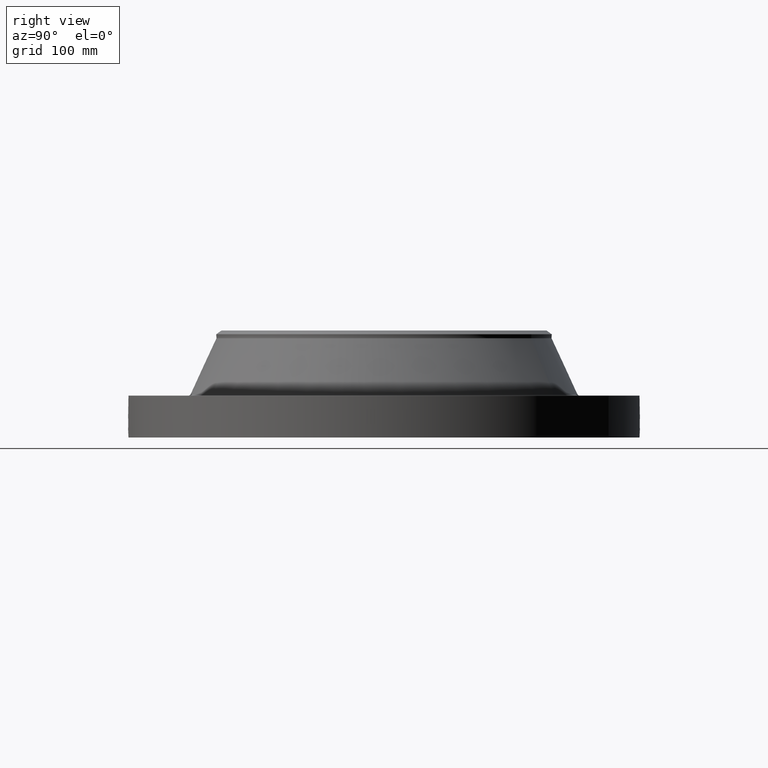
[diagram: clean part render]
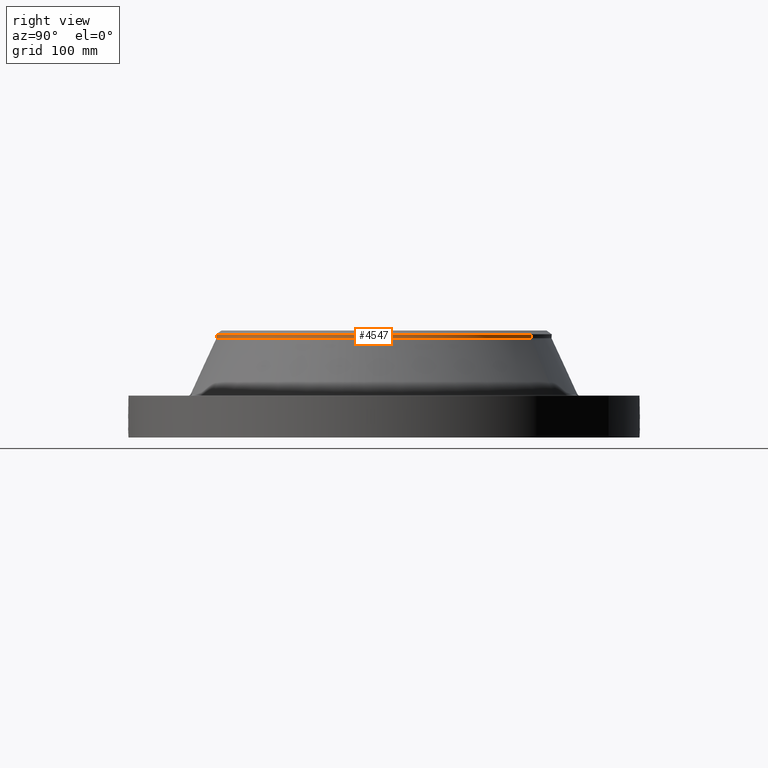
[diagram: same view with one face highlighted and labeled with its STEP entity id]
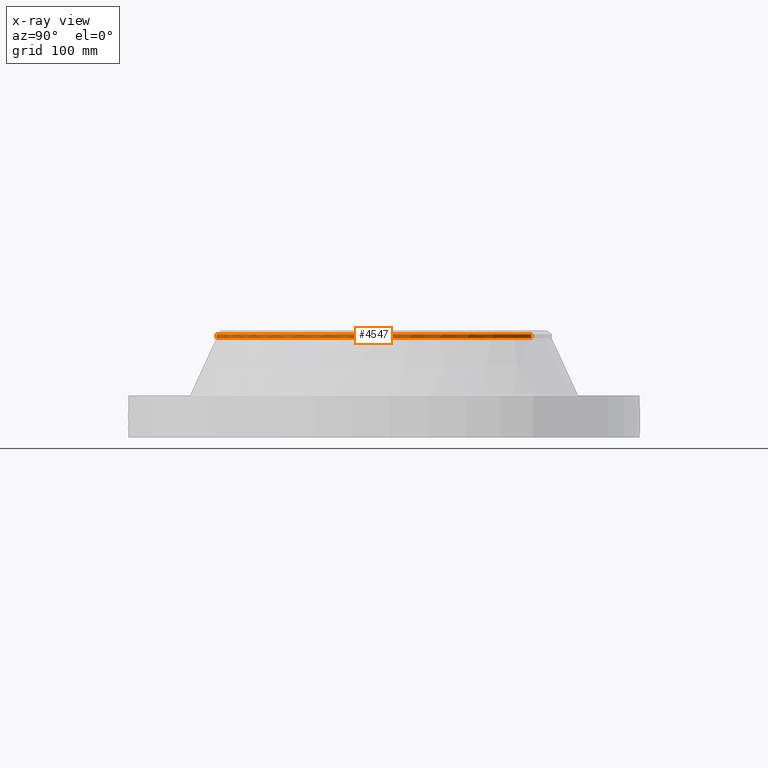
[diagram: x-ray of the same camera — body ghosted, the highlighted face saturated]
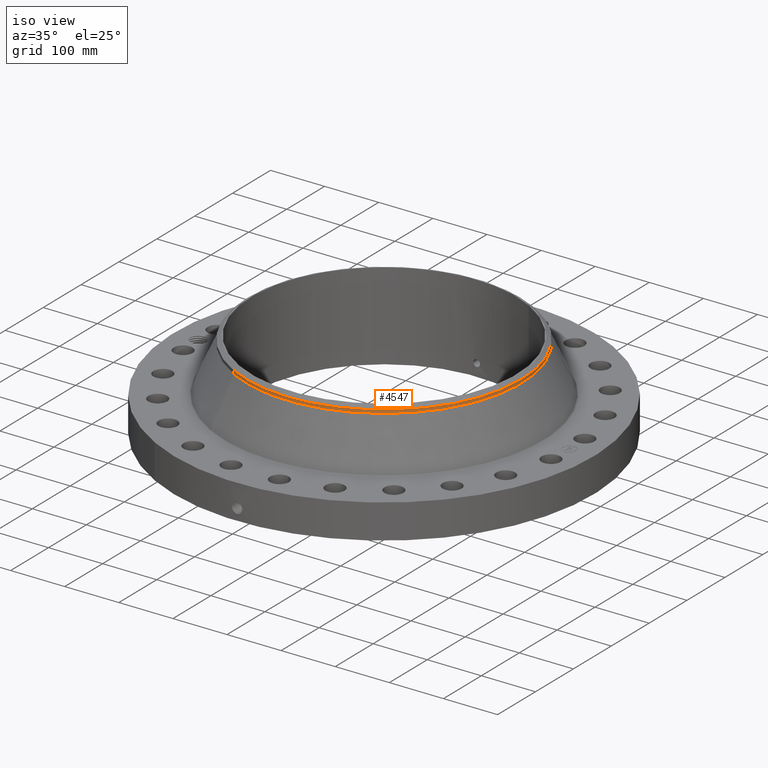
[diagram: same view with one face highlighted and labeled with its STEP entity id]
A machine part, right view. The second image highlights one B-rep face of the part: STEP entity #4547.
The next image is the same camera in x-ray: the body ghosted, the highlighted face saturated — about 0% of this face is hidden behind the body in this view.
A second angle (iso view) of the same face is appended — the face is thin or edge-on in the first view.
In plain terms, the highlighted cylindrical surface (partial cylindrical patch) has radius 254 mm, axis along (0, 0, -1).
Its self-contained STEP definition (entity closure, byte-faithful):
#3728=AXIS2_PLACEMENT_3D('Circle Axis2P3D',#3726,#3727,$) ;
#4183=AXIS2_PLACEMENT_3D('Circle Axis2P3D',#4181,#4182,$) ;
#4196=AXIS2_PLACEMENT_3D('Circle Axis2P3D',#4194,#4195,$) ;
#4528=AXIS2_PLACEMENT_3D('Cylinder Axis2P3D',#4525,#4526,#4527) ;
#3723=CARTESIAN_POINT('Vertex',(4.79425538606,8.77582561894,5.97645135496)) ;
#3726=CARTESIAN_POINT('Axis2P3D Location',(0.,0.,5.97645135496)) ;
#3730=CARTESIAN_POINT('Vertex',(-4.79425538606,-8.77582561894,5.97645135496)) ;
#4164=CARTESIAN_POINT('Vertex',(4.79425538606,-8.77582561894,6.2126718274)) ;
#4178=CARTESIAN_POINT('Vertex',(-4.79425538606,-8.77582561894,6.2126718274)) ;
#4181=CARTESIAN_POINT('Axis2P3D Location',(0.,0.,6.2126718274)) ;
#4194=CARTESIAN_POINT('Axis2P3D Location',(0.,0.,6.2126718274)) ;
#4198=CARTESIAN_POINT('Vertex',(4.79425538606,8.77582561894,6.2126718274)) ;
#4525=CARTESIAN_POINT('Axis2P3D Location',(0.,0.,3.25000000001)) ;
#4530=CARTESIAN_POINT('Line Origine',(-4.79425538606,-8.77582561894,6.09456159118)) ;
#4535=CARTESIAN_POINT('Line Origine',(4.79425538606,8.77582561894,6.09456159118)) ;
#3727=DIRECTION('Axis2P3D Direction',(0.,0.,-0.0393700787402)) ;
#4182=DIRECTION('Axis2P3D Direction',(0.,0.,-0.0393700787402)) ;
#4195=DIRECTION('Axis2P3D Direction',(0.,0.,-0.0393700787402)) ;
#4526=DIRECTION('Axis2P3D Direction',(0.,0.,-0.0393700787402)) ;
#4527=DIRECTION('Axis2P3D XDirection',(-0.0188750212049,-0.0345504945626,0.)) ;
#4531=DIRECTION('Vector Direction',(0.,0.,-0.0393700787402)) ;
#4536=DIRECTION('Vector Direction',(0.,0.,-0.0393700787402)) ;
#4532=VECTOR('Line Direction',#4531,0.0393700787402) ;
#4537=VECTOR('Line Direction',#4536,0.0393700787402) ;
#4541=ORIENTED_EDGE('',*,*,#4534,.F.) ;
#4542=ORIENTED_EDGE('',*,*,#3732,.F.) ;
#4543=ORIENTED_EDGE('',*,*,#4539,.T.) ;
#4544=ORIENTED_EDGE('',*,*,#4200,.F.) ;
#4545=ORIENTED_EDGE('',*,*,#4185,.T.) ;
#4547=ADVANCED_FACE('PartBody',(#4546),#4529,.T.) ;
#3729=CIRCLE('generated circle',#3728,10.) ;
#4184=CIRCLE('generated circle',#4183,10.) ;
#4197=CIRCLE('generated circle',#4196,10.) ;
#4529=CYLINDRICAL_SURFACE('generated cylinder',#4528,10.) ;
#3732=EDGE_CURVE('',#3724,#3731,#3729,.T.) ;
#4185=EDGE_CURVE('',#4165,#4179,#4184,.T.) ;
#4200=EDGE_CURVE('',#4165,#4199,#4197,.F.) ;
#4534=EDGE_CURVE('',#3731,#4179,#4533,.F.) ;
#4539=EDGE_CURVE('',#3724,#4199,#4538,.F.) ;
#4540=EDGE_LOOP('',(#4541,#4542,#4543,#4544,#4545)) ;
#4546=FACE_OUTER_BOUND('',#4540,.T.) ;
#4533=LINE('Line',#4530,#4532) ;
#4538=LINE('Line',#4535,#4537) ;
#3724=VERTEX_POINT('',#3723) ;
#3731=VERTEX_POINT('',#3730) ;
#4165=VERTEX_POINT('',#4164) ;
#4179=VERTEX_POINT('',#4178) ;
#4199=VERTEX_POINT('',#4198) ;